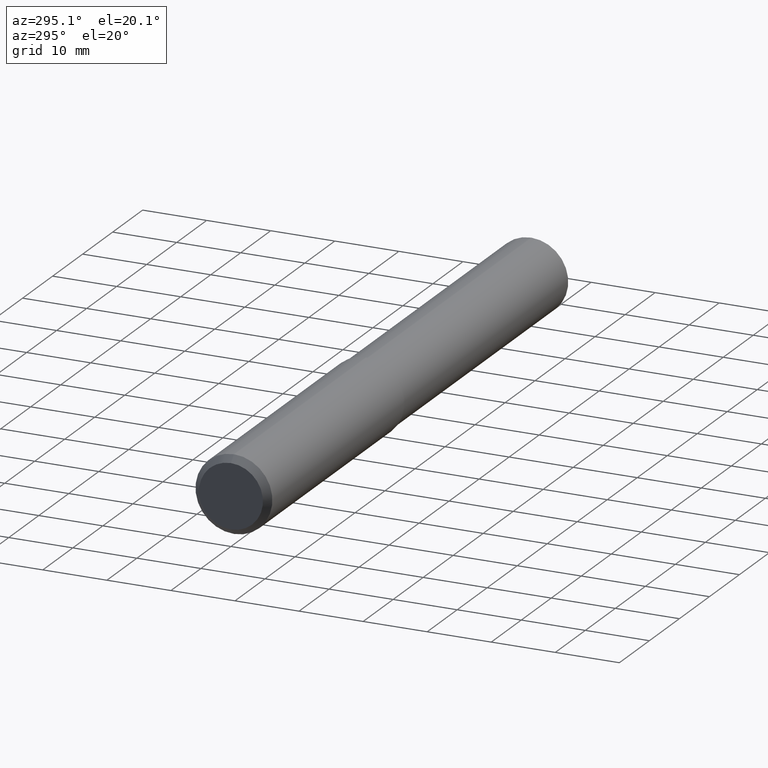
[diagram: clean part render]
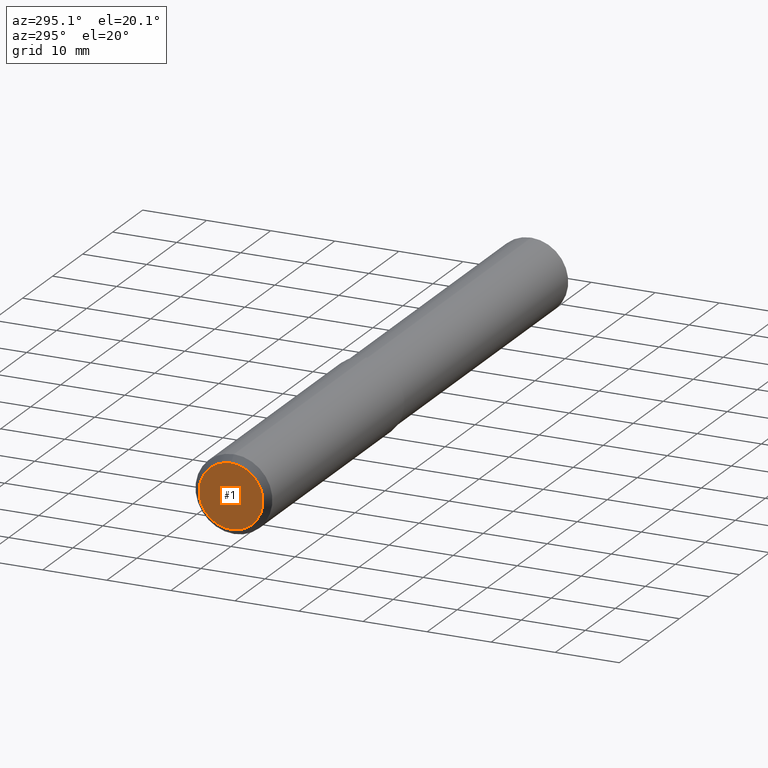
[diagram: same view with one face highlighted and labeled with its STEP entity id]
A machine part, auxiliary view. The second image highlights one B-rep face of the part: STEP entity #1.
In plain terms, the highlighted planar face has unit normal (-1, 0, 0).
Its self-contained STEP definition (entity closure, byte-faithful):
#1 = ADVANCED_FACE ( 'NONE', ( #353 ), #197, .T. ) ;
#14 = AXIS2_PLACEMENT_3D ( 'NONE', #335, #184, #125 ) ;
#28 = DIRECTION ( 'NONE',  ( -1.000000000000000000, 0.000000000000000000, 0.000000000000000000 ) ) ;
#62 = CARTESIAN_POINT ( 'NONE',  ( 4.268512490100411279E-18, 0.000000000000000000, -0.1968503937007874405 ) ) ;
#83 = CARTESIAN_POINT ( 'NONE',  ( 1.186075246418296407E-18, 0.1968503937007874405, 0.000000000000000000 ) ) ;
#109 = EDGE_CURVE ( 'NONE', #117, #149, #288, .T. ) ;
#117 = VERTEX_POINT ( 'NONE', #62 ) ;
#125 = DIRECTION ( 'NONE',  ( 0.000000000000000000, 0.000000000000000000, -1.000000000000000000 ) ) ;
#149 = VERTEX_POINT ( 'NONE', #209 ) ;
#157 = CIRCLE ( 'NONE', #309, 0.1968503937007874405 ) ;
#163 = DIRECTION ( 'NONE',  ( 1.000000000000000000, -0.000000000000000000, -0.000000000000000000 ) ) ;
#184 = DIRECTION ( 'NONE',  ( 1.000000000000000000, -0.000000000000000000, -0.000000000000000000 ) ) ;
#197 = PLANE ( 'NONE',  #242 ) ;
#202 = DIRECTION ( 'NONE',  ( 0.000000000000000000, 0.000000000000000000, 1.000000000000000000 ) ) ;
#209 = CARTESIAN_POINT ( 'NONE',  ( 4.268512490100411279E-18, 2.651794250122222108E-17, 0.1968503937007874405 ) ) ;
#223 = ORIENTED_EDGE ( 'NONE', *, *, #109, .F. ) ;
#229 = EDGE_LOOP ( 'NONE', ( #223, #343 ) ) ;
#242 = AXIS2_PLACEMENT_3D ( 'NONE', #83, #28, #202 ) ;
#250 = EDGE_CURVE ( 'NONE', #149, #117, #157, .T. ) ;
#288 = CIRCLE ( 'NONE', #14, 0.1968503937007874405 ) ;
#307 = CARTESIAN_POINT ( 'NONE',  ( 4.268512490100411279E-18, 0.000000000000000000, 0.000000000000000000 ) ) ;
#309 = AXIS2_PLACEMENT_3D ( 'NONE', #307, #163, #339 ) ;
#335 = CARTESIAN_POINT ( 'NONE',  ( 4.268512490100411279E-18, 0.000000000000000000, 0.000000000000000000 ) ) ;
#339 = DIRECTION ( 'NONE',  ( 0.000000000000000000, 0.000000000000000000, -1.000000000000000000 ) ) ;
#343 = ORIENTED_EDGE ( 'NONE', *, *, #250, .F. ) ;
#353 = FACE_OUTER_BOUND ( 'NONE', #229, .T. ) ;